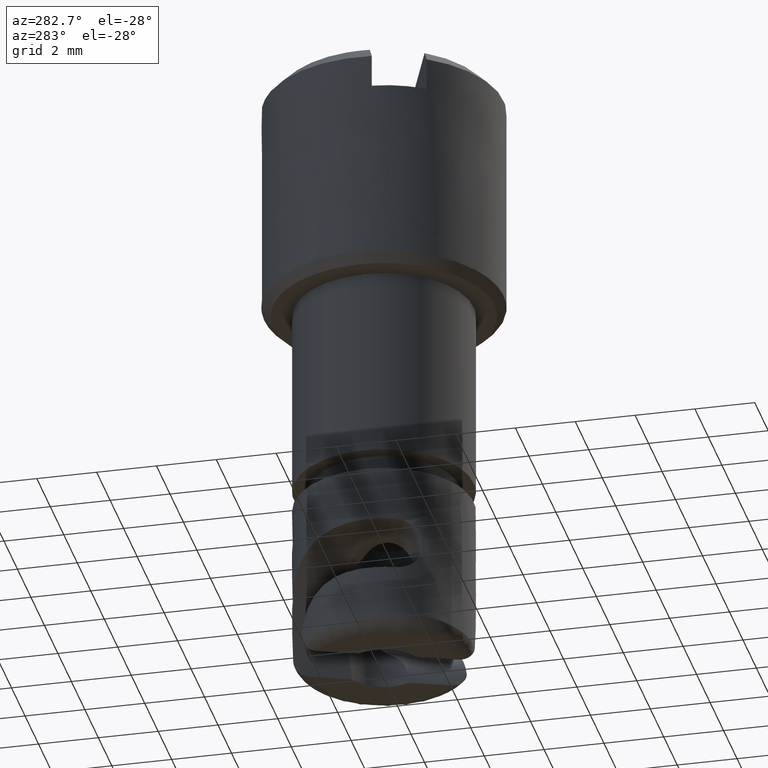
[diagram: clean part render]
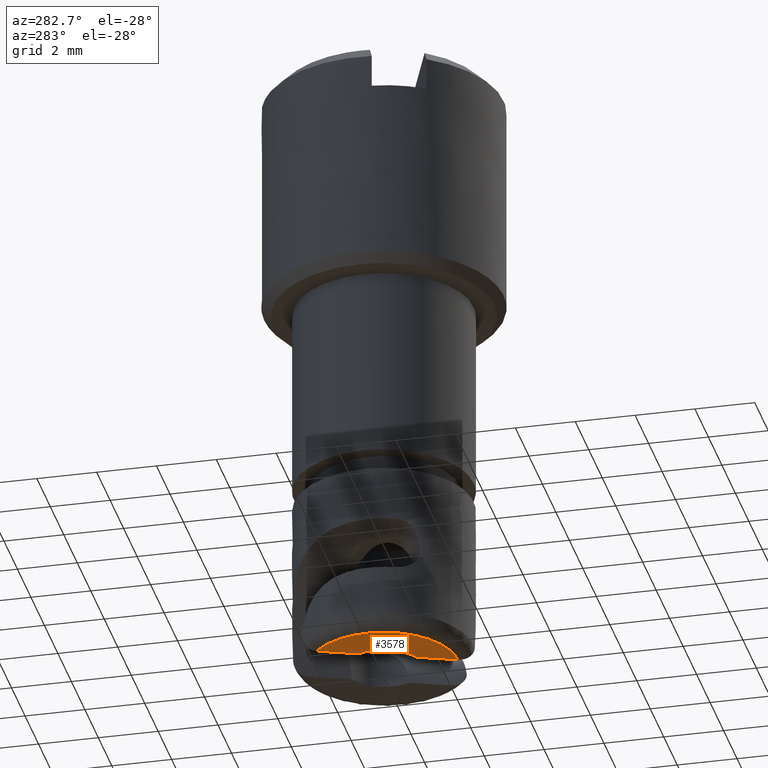
[diagram: same view with one face highlighted and labeled with its STEP entity id]
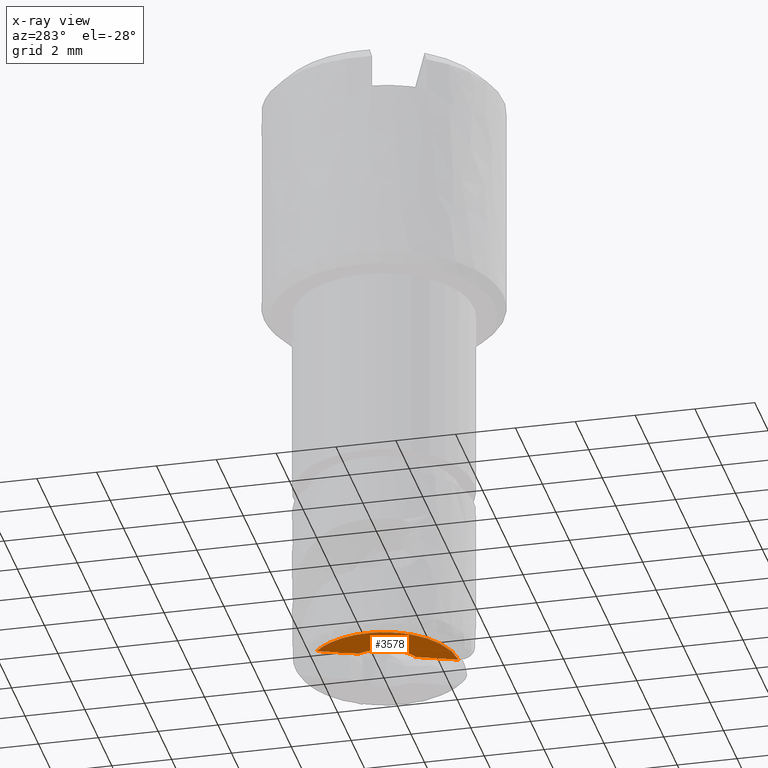
[diagram: x-ray of the same camera — body ghosted, the highlighted face saturated]
A machine part, auxiliary view. The second image highlights one B-rep face of the part: STEP entity #3578.
The next image is the same camera in x-ray: the body ghosted, the highlighted face saturated — about 0% of this face is hidden behind the body in this view.
In plain terms, the highlighted face is a freeform B-spline surface patch.
Its self-contained STEP definition (entity closure, byte-faithful):
#671=CARTESIAN_POINT('',(-0.524884776047534,-1.189325847643752,-2.797569000000055));
#672=VERTEX_POINT('',#671);
#692=CARTESIAN_POINT('',(-1.166569293323064,0.573686398551991,-2.797569000000105));
#693=VERTEX_POINT('',#692);
#694=CARTESIAN_POINT('',(-0.524884776047534,-1.189325847643753,-2.797569000000055));
#695=CARTESIAN_POINT('',(-1.032012024761515,-0.965515549653347,-2.797569000000055));
#696=CARTESIAN_POINT('',(-1.221600287431684,-0.444626514894048,-2.797569000000055));
#697=CARTESIAN_POINT('',(-1.411188550101852,0.076262519865251,-2.797569000000055));
#698=CARTESIAN_POINT('',(-1.166569293323064,0.573686398551991,-2.797569000000105));
#706=(BOUNDED_CURVE()B_SPLINE_CURVE(2,(#694,#695,#696,#697,#698),.UNSPECIFIED.,.F.,.U.)B_SPLINE_CURVE_WITH_KNOTS((3,2,3),(0.0,0.500000000000000,1.0),.UNSPECIFIED.)CURVE()GEOMETRIC_REPRESENTATION_ITEM()RATIONAL_B_SPLINE_CURVE((1.0,0.919867047249338,1.0,0.919867047249338,1.0))REPRESENTATION_ITEM(''));
#707=EDGE_CURVE('',#672,#693,#706,.T.);
#1960=CARTESIAN_POINT('',(-0.048004305570615,-2.499543075565215,-2.797569000000101));
#1961=VERTEX_POINT('',#1960);
#1987=CARTESIAN_POINT('',(-1.643449763799155,1.883903626470840,-2.797569000000105));
#1988=VERTEX_POINT('',#1987);
#2012=CARTESIAN_POINT('',(-0.048004305570615,-2.499543075565215,-2.797569000000101));
#2013=CARTESIAN_POINT('',(-1.762674692165594,-2.466612432373943,-2.797569000000101));
#2014=CARTESIAN_POINT('',(-2.349235080753663,-0.855052358263709,-2.797569000000101));
#2015=CARTESIAN_POINT('',(-2.935795469341733,0.756507715846524,-2.797569000000101));
#2016=CARTESIAN_POINT('',(-1.643449763799155,1.883903626470840,-2.797569000000105));
#2024=(BOUNDED_CURVE()B_SPLINE_CURVE(2,(#2012,#2013,#2014,#2015,#2016),.UNSPECIFIED.,.F.,.U.)B_SPLINE_CURVE_WITH_KNOTS((3,2,3),(0.0,0.500000000000000,1.0),.UNSPECIFIED.)CURVE()GEOMETRIC_REPRESENTATION_ITEM()RATIONAL_B_SPLINE_CURVE((1.0,0.824621435569143,1.0,0.824621435569143,1.0))REPRESENTATION_ITEM(''));
#2025=EDGE_CURVE('',#1961,#1988,#2024,.T.);
#3356=CARTESIAN_POINT('',(-1.643449763799155,1.883903626470840,-2.797569000000105));
#3357=CARTESIAN_POINT('',(-1.166569293323064,0.573686398551991,-2.797569000000105));
#3358=QUASI_UNIFORM_CURVE('',1,(#3356,#3357),.UNSPECIFIED.,.F.,.U.);
#3359=EDGE_CURVE('',#1988,#693,#3358,.T.);
#3385=CARTESIAN_POINT('',(-0.048004305570615,-2.499543075565215,-2.797569000000101));
#3386=CARTESIAN_POINT('',(-0.524884776047534,-1.189325847643752,-2.797569000000055));
#3387=QUASI_UNIFORM_CURVE('',1,(#3385,#3386),.UNSPECIFIED.,.F.,.U.);
#3388=EDGE_CURVE('',#1961,#672,#3387,.T.);
#3567=CARTESIAN_POINT('',(0.074422750028474,-2.718496353281929,-2.797569000000101));
#3568=CARTESIAN_POINT('',(-2.621423626156288,-2.718496353281929,-2.797569000000101));
#3569=CARTESIAN_POINT('',(0.074422750028474,2.102856904187554,-2.797569000000101));
#3570=CARTESIAN_POINT('',(-2.621423626156288,2.102856904187554,-2.797569000000101));
#3571=B_SPLINE_SURFACE_WITH_KNOTS('',1,1,((#3567,#3569),(#3568,#3570)),.UNSPECIFIED.,.F.,.F.,.U.,(2,2),(2,2),(0.0,2.695846376184762),(0.0,4.821353257469483),.UNSPECIFIED.);
#3572=ORIENTED_EDGE('',*,*,#3388,.F.);
#3573=ORIENTED_EDGE('',*,*,#2025,.T.);
#3574=ORIENTED_EDGE('',*,*,#3359,.T.);
#3575=ORIENTED_EDGE('',*,*,#707,.F.);
#3576=EDGE_LOOP('',(#3572,#3573,#3574,#3575));
#3577=FACE_OUTER_BOUND('',#3576,.T.);
#3578=ADVANCED_FACE('',(#3577),#3571,.T.);